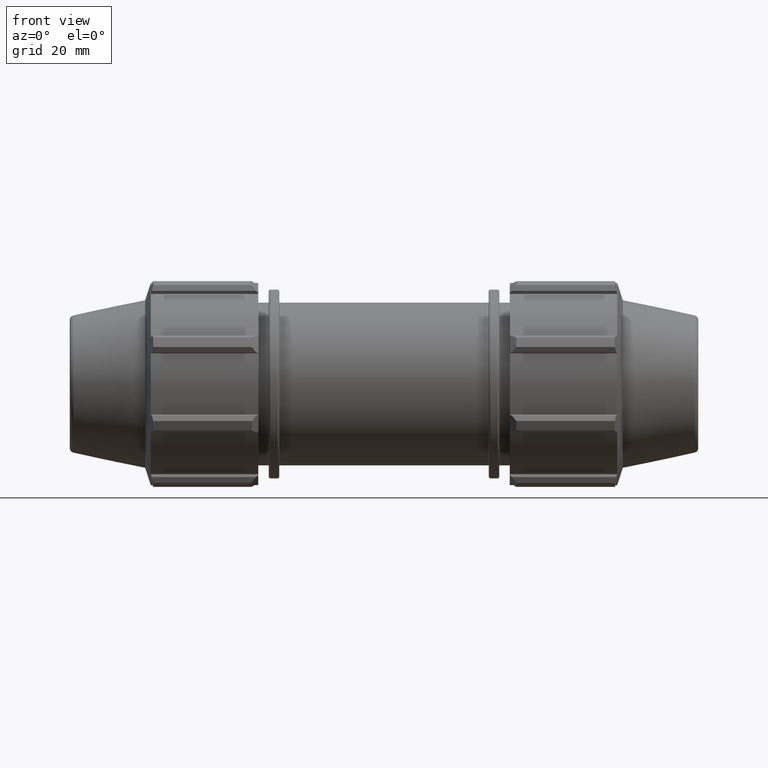
[diagram: clean part render]
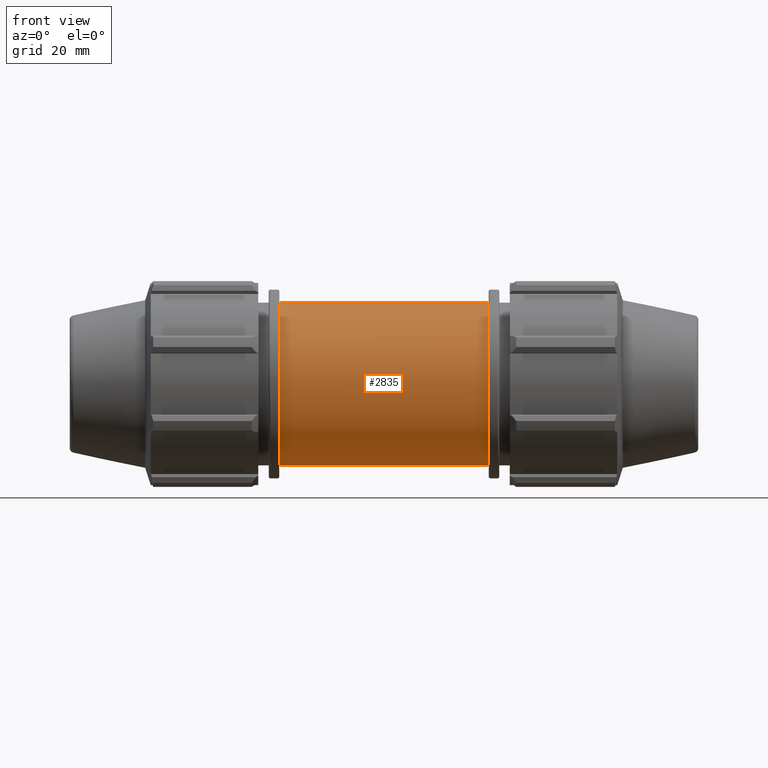
[diagram: same view with one face highlighted and labeled with its STEP entity id]
A machine part, front view. The second image highlights one B-rep face of the part: STEP entity #2835.
In plain terms, the highlighted cylindrical surface (bore or boss wall) has radius 18 mm, axis along (1, 0, 0).
Its self-contained STEP definition (entity closure, byte-faithful):
#612=FACE_BOUND('',#964,.T.);
#613=FACE_BOUND('',#965,.T.);
#616=B_SPLINE_CURVE_WITH_KNOTS('',3,(#3858,#3859,#3860,#3861,#3862,#3863,
#3864,#3865,#3866,#3867,#3868,#3869,#3870,#3871,#3872,#3873,#3874,#3875,
#3876,#3877,#3878,#3879,#3880,#3881,#3882,#3883,#3884,#3885,#3886,#3887,
#3888,#3889,#3890,#3891,#3892,#3893,#3894,#3895,#3896,#3897,#3898,#3899),
 .UNSPECIFIED.,.T.,.F.,(4,2,2,2,2,2,2,2,2,2,2,2,2,2,2,2,2,2,2,2,4),(0.,
0.203696348689268,0.407392697378536,0.814785394757072,1.21991081917046,
1.62503624358386,2.03016166799725,2.43528709241064,2.84267978978918,3.04637613847845,
3.25007248716772,3.45376883585698,3.65746518454625,4.06485788192479,4.46998330633818,
4.87510873075157,5.28023415516497,5.68535957957836,6.09275227695689,6.29644862564616,
6.50014497433543),.UNSPECIFIED.);
#769=FACE_OUTER_BOUND('',#963,.T.);
#963=EDGE_LOOP('',(#2478));
#964=EDGE_LOOP('',(#2479));
#965=EDGE_LOOP('',(#2480));
#1028=CIRCLE('',#2955,18.);
#1084=CIRCLE('',#3085,18.);
#1090=VERTEX_POINT('',#3857);
#1221=VERTEX_POINT('',#4368);
#1349=VERTEX_POINT('',#4827);
#1355=EDGE_CURVE('',#1090,#1090,#616,.T.);
#1533=EDGE_CURVE('',#1221,#1221,#1028,.T.);
#1726=EDGE_CURVE('',#1349,#1349,#1084,.T.);
#2478=ORIENTED_EDGE('',*,*,#1533,.T.);
#2479=ORIENTED_EDGE('',*,*,#1355,.T.);
#2480=ORIENTED_EDGE('',*,*,#1726,.F.);
#2527=CYLINDRICAL_SURFACE('',#3110,18.);
#2835=ADVANCED_FACE('',(#769,#612,#613),#2527,.T.);
#2955=AXIS2_PLACEMENT_3D('',#4369,#3432,#3433);
#3085=AXIS2_PLACEMENT_3D('',#4828,#3797,#3798);
#3110=AXIS2_PLACEMENT_3D('',#4857,#3847,#3848);
#3432=DIRECTION('center_axis',(1.,-4.01311517903141E-16,0.));
#3433=DIRECTION('ref_axis',(0.,0.,-1.));
#3797=DIRECTION('center_axis',(1.,4.01311517903141E-16,0.));
#3798=DIRECTION('ref_axis',(0.,0.,-1.));
#3847=DIRECTION('center_axis',(1.,4.01311517903141E-16,0.));
#3848=DIRECTION('ref_axis',(0.,1.,0.));
#3857=CARTESIAN_POINT('',(-2.08166817117217E-15,14.6363244617629,10.4775));
#3858=CARTESIAN_POINT('Ctrl Pts',(-2.08166817117217E-15,14.6363244617629,
10.4775));
#3859=CARTESIAN_POINT('Ctrl Pts',(-0.678987828964229,14.6363244617629,10.4775));
#3860=CARTESIAN_POINT('Ctrl Pts',(-1.37326491537601,14.6850005161877,10.4105028788667));
#3861=CARTESIAN_POINT('Ctrl Pts',(-2.74099264201325,14.8753629837515,10.1366358453319));
#3862=CARTESIAN_POINT('Ctrl Pts',(-3.41453046543168,15.016620925008,9.92990370215126));
#3863=CARTESIAN_POINT('Ctrl Pts',(-5.33893627085908,15.5305387180347,9.1219437565575));
#3864=CARTESIAN_POINT('Ctrl Pts',(-6.49398804655596,15.9914920034314,8.32343455320815));
#3865=CARTESIAN_POINT('Ctrl Pts',(-8.31834382056566,16.8154147345107,6.49907877919844));
#3866=CARTESIAN_POINT('Ctrl Pts',(-9.12043798861121,17.2395222998249,5.34255862228379));
#3867=CARTESIAN_POINT('Ctrl Pts',(-10.2008198576523,17.8346702035214,2.76922418041775));
#3868=CARTESIAN_POINT('Ctrl Pts',(-10.4775,18.,1.35041808137798));
#3869=CARTESIAN_POINT('Ctrl Pts',(-10.4775,18.,-1.35041808137798));
#3870=CARTESIAN_POINT('Ctrl Pts',(-10.2008198576523,17.8346702035214,-2.76922418041775));
#3871=CARTESIAN_POINT('Ctrl Pts',(-9.12043798861121,17.2395222998249,-5.34255862228379));
#3872=CARTESIAN_POINT('Ctrl Pts',(-8.31834382056566,16.8154147345107,-6.49907877919844));
#3873=CARTESIAN_POINT('Ctrl Pts',(-6.49398804655596,15.9914920034314,-8.32343455320815));
#3874=CARTESIAN_POINT('Ctrl Pts',(-5.33893627085908,15.5305387180347,-9.1219437565575));
#3875=CARTESIAN_POINT('Ctrl Pts',(-3.41453046543168,15.016620925008,-9.92990370215126));
#3876=CARTESIAN_POINT('Ctrl Pts',(-2.74099264201325,14.8753629837515,-10.1366358453319));
#3877=CARTESIAN_POINT('Ctrl Pts',(-1.37326491537601,14.6850005161877,-10.4105028788667));
#3878=CARTESIAN_POINT('Ctrl Pts',(-0.678987828964229,14.6363244617629,-10.4775));
#3879=CARTESIAN_POINT('Ctrl Pts',(0.678987828964224,14.6363244617629,-10.4775));
#3880=CARTESIAN_POINT('Ctrl Pts',(1.373264915376,14.6850005161877,-10.4105028788667));
#3881=CARTESIAN_POINT('Ctrl Pts',(2.74099264201325,14.8753629837515,-10.1366358453319));
#3882=CARTESIAN_POINT('Ctrl Pts',(3.41453046543168,15.016620925008,-9.92990370215126));
#3883=CARTESIAN_POINT('Ctrl Pts',(5.33893627085908,15.5305387180347,-9.1219437565575));
#3884=CARTESIAN_POINT('Ctrl Pts',(6.49398804655595,15.9914920034314,-8.32343455320815));
#3885=CARTESIAN_POINT('Ctrl Pts',(8.31834382056566,16.8154147345107,-6.49907877919844));
#3886=CARTESIAN_POINT('Ctrl Pts',(9.12043798861121,17.2395222998249,-5.34255862228379));
#3887=CARTESIAN_POINT('Ctrl Pts',(10.2008198576523,17.8346702035214,-2.76922418041775));
#3888=CARTESIAN_POINT('Ctrl Pts',(10.4775,18.,-1.35041808137798));
#3889=CARTESIAN_POINT('Ctrl Pts',(10.4775,18.,1.35041808137797));
#3890=CARTESIAN_POINT('Ctrl Pts',(10.2008198576523,17.8346702035214,2.76922418041775));
#3891=CARTESIAN_POINT('Ctrl Pts',(9.12043798861121,17.2395222998249,5.34255862228379));
#3892=CARTESIAN_POINT('Ctrl Pts',(8.31834382056567,16.8154147345107,6.49907877919843));
#3893=CARTESIAN_POINT('Ctrl Pts',(6.49398804655596,15.9914920034314,8.32343455320814));
#3894=CARTESIAN_POINT('Ctrl Pts',(5.33893627085908,15.5305387180347,9.1219437565575));
#3895=CARTESIAN_POINT('Ctrl Pts',(3.41453046543168,15.016620925008,9.92990370215126));
#3896=CARTESIAN_POINT('Ctrl Pts',(2.74099264201325,14.8753629837515,10.1366358453319));
#3897=CARTESIAN_POINT('Ctrl Pts',(1.373264915376,14.6850005161877,10.4105028788667));
#3898=CARTESIAN_POINT('Ctrl Pts',(0.678987828964223,14.6363244617629,10.4775));
#3899=CARTESIAN_POINT('Ctrl Pts',(-1.94289029309402E-15,14.6363244617629,
10.4775));
#4368=CARTESIAN_POINT('',(-23.,18.,0.));
#4369=CARTESIAN_POINT('Origin',(-23.,9.23016491177225E-15,0.));
#4827=CARTESIAN_POINT('',(23.,18.,0.));
#4828=CARTESIAN_POINT('Origin',(23.,9.23016491177225E-15,0.));
#4857=CARTESIAN_POINT('Origin',(11.5,4.61508245588613E-15,0.));